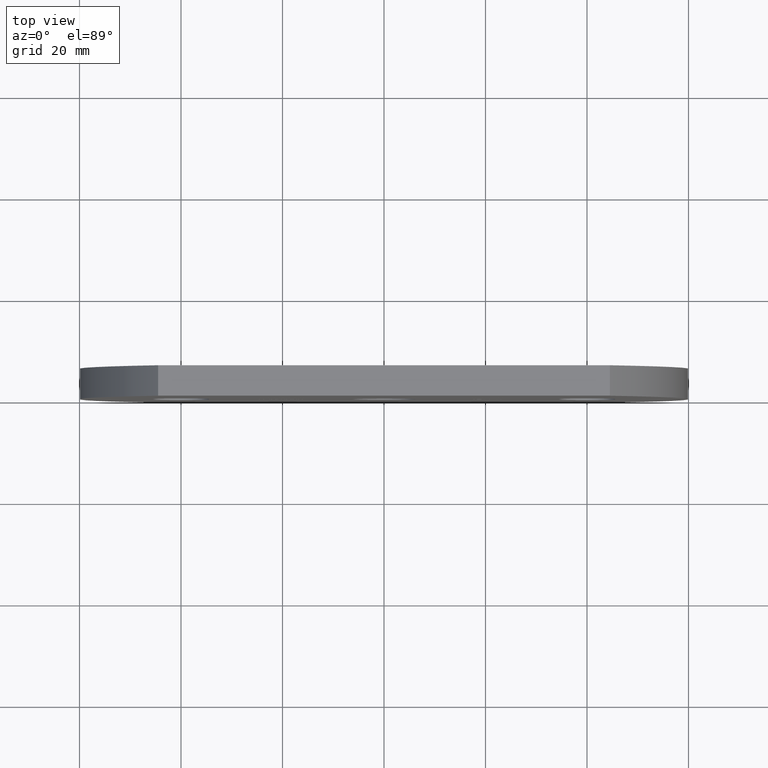
[diagram: clean part render]
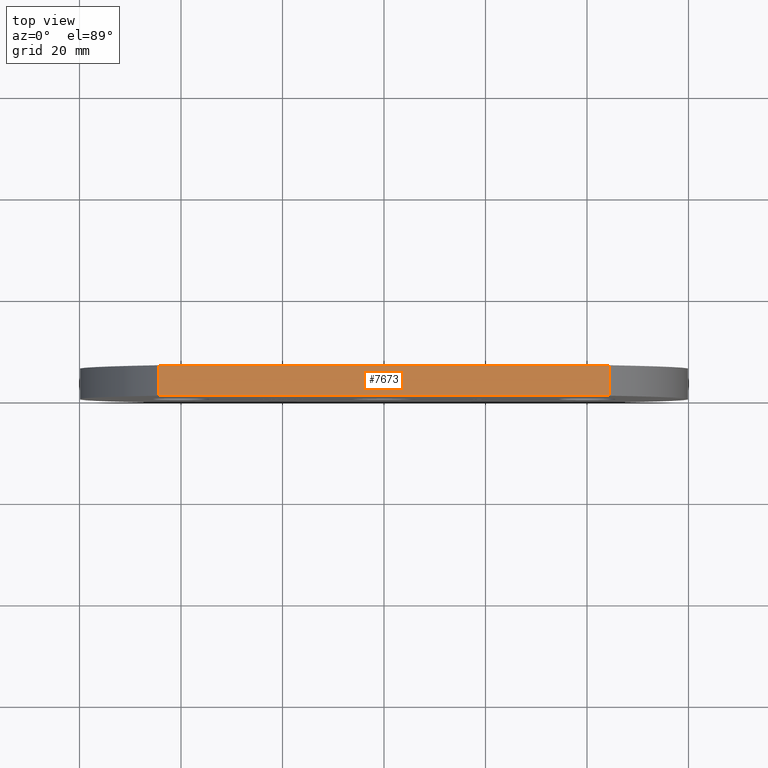
[diagram: same view with one face highlighted and labeled with its STEP entity id]
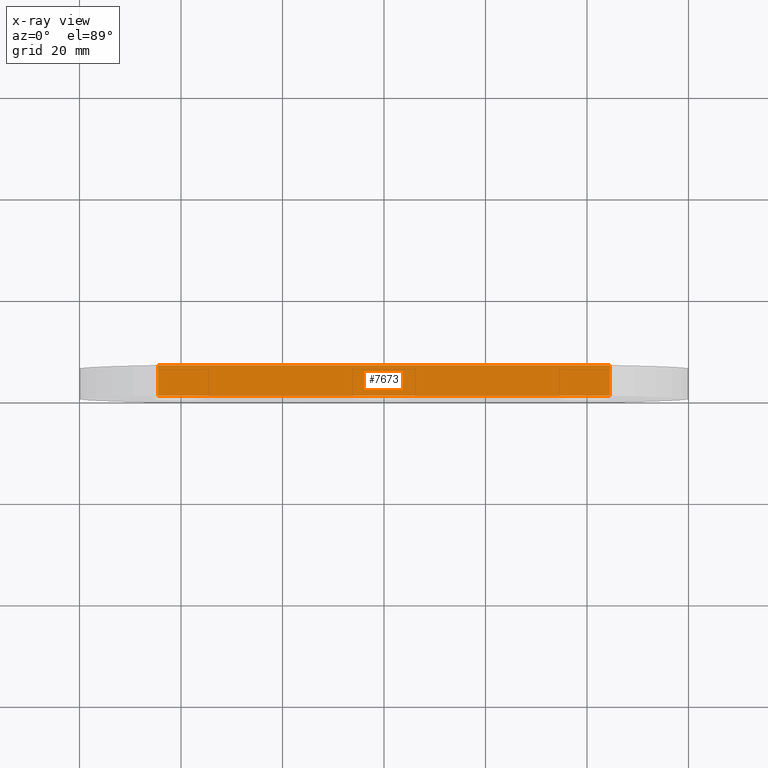
[diagram: x-ray of the same camera — body ghosted, the highlighted face saturated]
A machine part, top view. The second image highlights one B-rep face of the part: STEP entity #7673.
The next image is the same camera in x-ray: the body ghosted, the highlighted face saturated — about 0% of this face is hidden behind the body in this view.
In plain terms, the highlighted planar face has unit normal (0, 0, -1).
Its self-contained STEP definition (entity closure, byte-faithful):
#207 = FACE_OUTER_BOUND ( 'NONE', #5241, .T. ) ;
#273 = DIRECTION ( 'NONE',  ( -1.000000000000000000, 0.0000000000000000000, -2.338953001317043400E-016 ) ) ;
#533 = EDGE_CURVE ( 'NONE', #2334, #553, #2039, .T. ) ;
#553 = VERTEX_POINT ( 'NONE', #1462 ) ;
#637 = VERTEX_POINT ( 'NONE', #3137 ) ;
#822 = VECTOR ( 'NONE', #8265, 1000.000000000000000 ) ;
#1005 = DIRECTION ( 'NONE',  ( 1.000000000000000000, 0.0000000000000000000, 2.338953001317043400E-016 ) ) ;
#1083 = VECTOR ( 'NONE', #1005, 1000.000000000000000 ) ;
#1164 = CARTESIAN_POINT ( 'NONE',  ( 44.49999999999997900, 6.000000000000000000, 40.00000000000001400 ) ) ;
#1304 = CARTESIAN_POINT ( 'NONE',  ( -44.50000000000002100, 6.000000000000000000, 39.99999999999999300 ) ) ;
#1408 = DIRECTION ( 'NONE',  ( 1.000000000000000000, 0.0000000000000000000, 2.338953001317043400E-016 ) ) ;
#1462 = CARTESIAN_POINT ( 'NONE',  ( -44.50000000000002100, 0.0000000000000000000, 39.99999999999999300 ) ) ;
#2030 = ORIENTED_EDGE ( 'NONE', *, *, #3859, .T. ) ;
#2039 = LINE ( 'NONE', #3656, #2264 ) ;
#2264 = VECTOR ( 'NONE', #7307, 1000.000000000000000 ) ;
#2334 = VERTEX_POINT ( 'NONE', #1304 ) ;
#2415 = CARTESIAN_POINT ( 'NONE',  ( -44.50000000000002100, 6.000000000000000000, 39.99999999999999300 ) ) ;
#2897 = CARTESIAN_POINT ( 'NONE',  ( -44.50000000000002100, 0.0000000000000000000, 39.99999999999999300 ) ) ;
#3137 = CARTESIAN_POINT ( 'NONE',  ( 44.49999999999997900, 0.0000000000000000000, 40.00000000000001400 ) ) ;
#3285 = VECTOR ( 'NONE', #1408, 1000.000000000000000 ) ;
#3511 = LINE ( 'NONE', #1164, #822 ) ;
#3632 = EDGE_CURVE ( 'NONE', #4739, #637, #3511, .T. ) ;
#3656 = CARTESIAN_POINT ( 'NONE',  ( -44.50000000000002100, 6.000000000000000000, 39.99999999999999300 ) ) ;
#3859 = EDGE_CURVE ( 'NONE', #553, #637, #8830, .T. ) ;
#3978 = ORIENTED_EDGE ( 'NONE', *, *, #533, .T. ) ;
#4156 = CARTESIAN_POINT ( 'NONE',  ( 44.49999999999997900, 6.000000000000000000, 40.00000000000001400 ) ) ;
#4355 = ORIENTED_EDGE ( 'NONE', *, *, #3632, .F. ) ;
#4653 = PLANE ( 'NONE',  #4757 ) ;
#4739 = VERTEX_POINT ( 'NONE', #4156 ) ;
#4757 = AXIS2_PLACEMENT_3D ( 'NONE', #6782, #6755, #273 ) ;
#5241 = EDGE_LOOP ( 'NONE', ( #2030, #4355, #8197, #3978 ) ) ;
#6755 = DIRECTION ( 'NONE',  ( 2.338953001317043400E-016, 0.0000000000000000000, -1.000000000000000000 ) ) ;
#6782 = CARTESIAN_POINT ( 'NONE',  ( -44.50000000000002100, 6.000000000000000000, 39.99999999999999300 ) ) ;
#7307 = DIRECTION ( 'NONE',  ( -0.0000000000000000000, -1.000000000000000000, -0.0000000000000000000 ) ) ;
#7447 = LINE ( 'NONE', #2415, #1083 ) ;
#7673 = ADVANCED_FACE ( 'NONE', ( #207 ), #4653, .F. ) ;
#8132 = EDGE_CURVE ( 'NONE', #2334, #4739, #7447, .T. ) ;
#8197 = ORIENTED_EDGE ( 'NONE', *, *, #8132, .F. ) ;
#8265 = DIRECTION ( 'NONE',  ( -0.0000000000000000000, -1.000000000000000000, -0.0000000000000000000 ) ) ;
#8830 = LINE ( 'NONE', #2897, #3285 ) ;